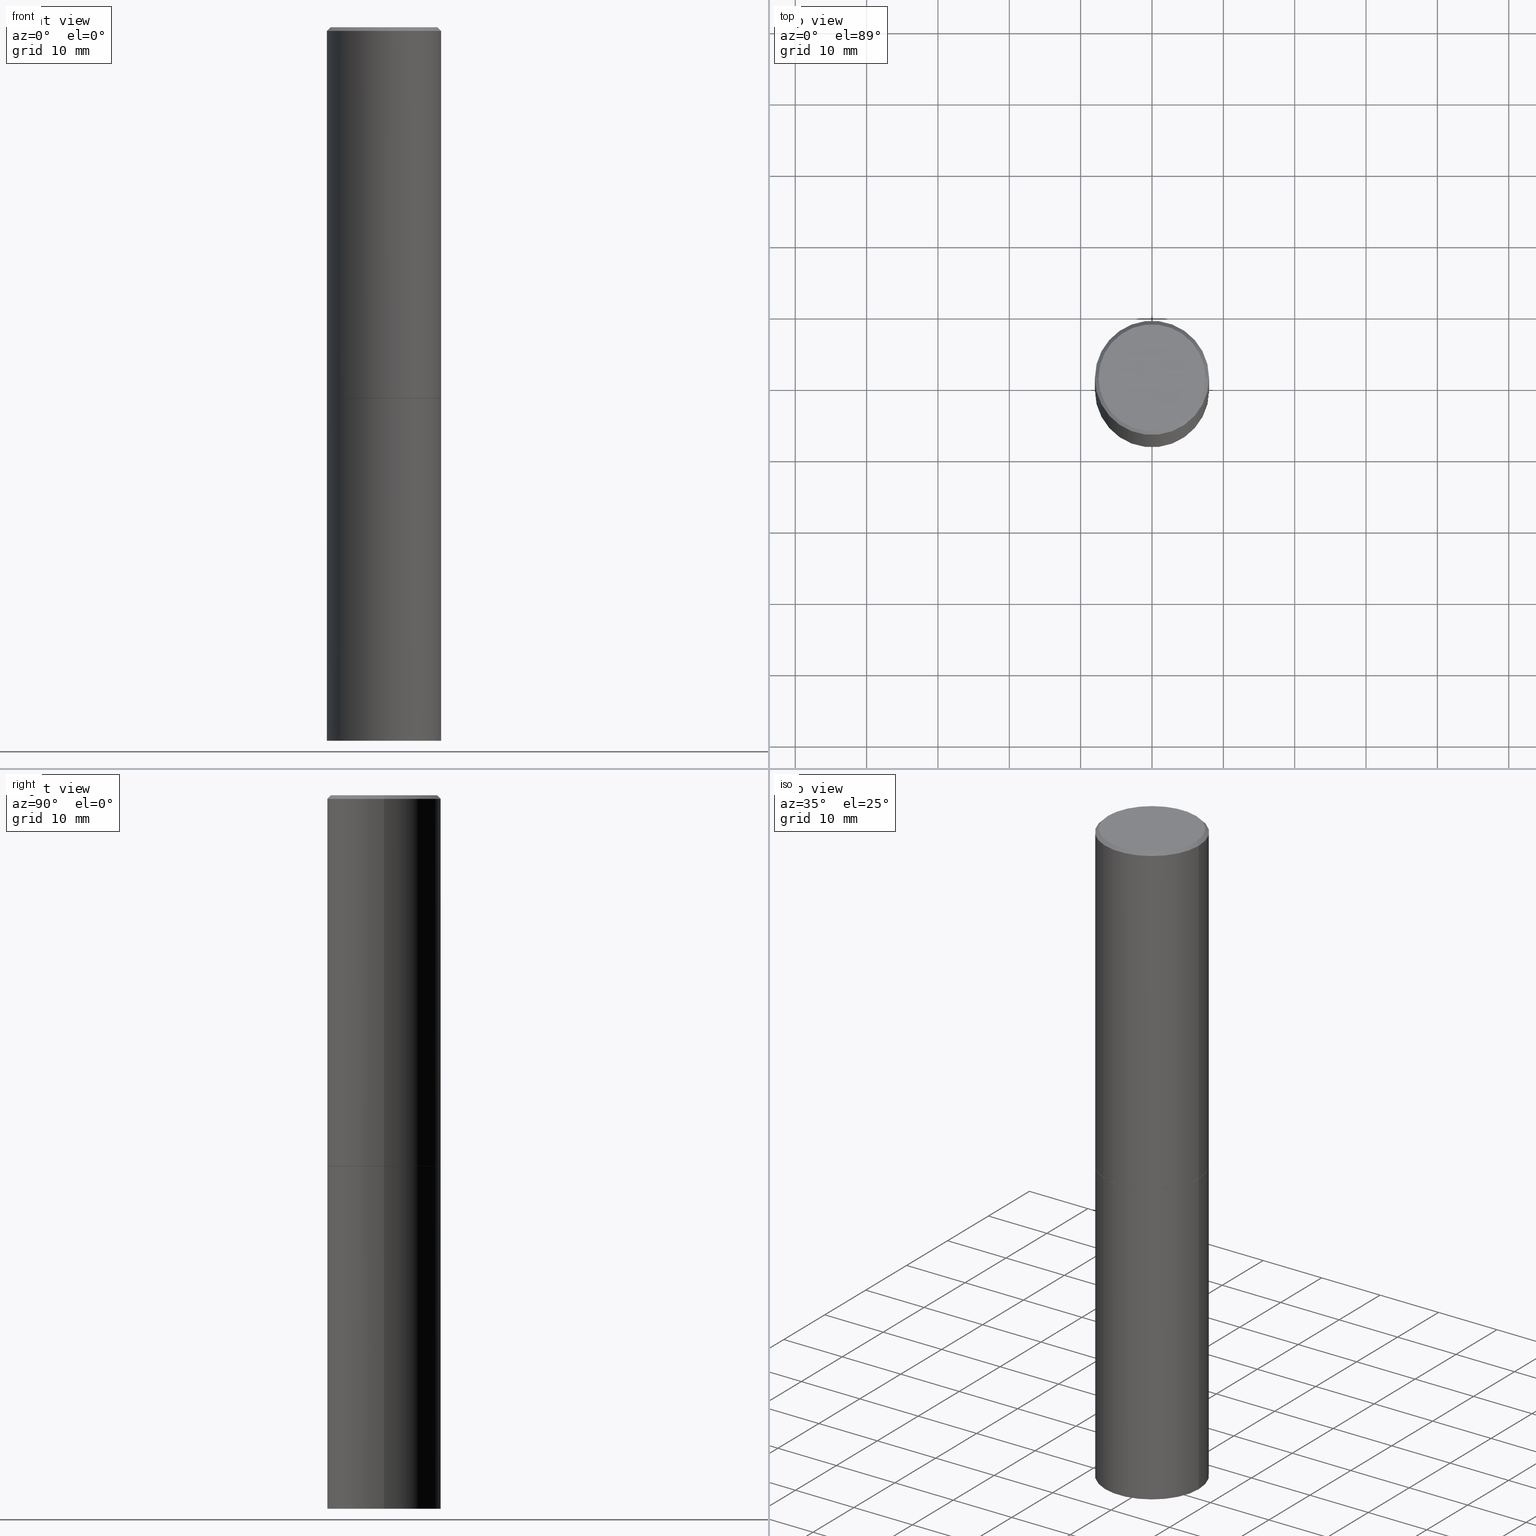
[diagram: canonical four-view strip — front | top / right | iso, engineering-drawing reading convention]
A machine part, canonical four-view strip (front | top / right | iso — engineering-drawing reading convention). The complete STEP part file that produces these views, byte-faithful:
ISO-10303-21;
HEADER;
FILE_DESCRIPTION (( 'STEP AP203' ),
    '1' );
FILE_NAME ('74752.STEP',
    '2024-05-03T15:03:38',
    ( '' ),
    ( '' ),
    'SwSTEP 2.0',
    'SolidWorks 2023',
    '' );
FILE_SCHEMA (( 'CONFIG_CONTROL_DESIGN' ));
ENDSEC;

DATA;
#1 = APPROVAL_STATUS ( 'not_yet_approved' ) ;
#2 = AXIS2_PLACEMENT_3D ( 'NONE', #175, #100, #146 ) ;
#3 = DIRECTION ( 'NONE',  ( -2.445468806185136597E-29, 3.491481338843145583E-15, 1.000000000000000000 ) ) ;
#4 = EDGE_CURVE ( 'NONE', #237, #280, #208, .T. ) ;
#5 = MANIFOLD_SOLID_BREP ( 'Body-Move/Copy2[1]', #209 ) ;
#6 = CARTESIAN_POINT ( 'NONE',  ( 5.006363740022211120E-29, -7.147760596879686624E-15, -2.047199999999999687 ) ) ;
#7 = DIRECTION ( 'NONE',  ( 1.000000000000000000, -6.982962677686265922E-15, 4.876176775795935232E-29 ) ) ;
#8 = AXIS2_PLACEMENT_3D ( 'NONE', #256, #202, #40 ) ;
#9 = AXIS2_PLACEMENT_3D ( 'NONE', #95, #3, #128 ) ;
#10 = CC_DESIGN_PERSON_AND_ORGANIZATION_ASSIGNMENT ( #207, #81, ( #289 ) ) ;
#11 = ADVANCED_BREP_SHAPE_REPRESENTATION ( '74752', ( #5, #12, #143 ), #251 ) ;
#12 = MANIFOLD_SOLID_BREP ( 'Body-Move/Copy2[2]', #345 ) ;
#13 = FACE_OUTER_BOUND ( 'NONE', #332, .T. ) ;
#14 = CONICAL_SURFACE ( 'NONE', #44, 0.3149499999999997857, 0.7853981633974471688 ) ;
#15 = SHAPE_DEFINITION_REPRESENTATION ( #150, #11 ) ;
#16 = APPROVAL_ROLE ( '' ) ;
#17 = EDGE_LOOP ( 'NONE', ( #87, #113 ) ) ;
#18 = PERSON_AND_ORGANIZATION ( #309, #346 ) ;
#19 = CARTESIAN_POINT ( 'NONE',  ( -0.3149499999999997857, 2.129454468560425389E-15, -0.02000000000000006981 ) ) ;
#20 =( NAMED_UNIT ( * ) PLANE_ANGLE_UNIT ( ) SI_UNIT ( $, .RADIAN. ) );
#21 = LINE ( 'NONE', #270, #245 ) ;
#22 = AXIS2_PLACEMENT_3D ( 'NONE', #6, #121, #230 ) ;
#23 = VECTOR ( 'NONE', #145, 39.37007874015748143 ) ;
#24 = APPROVAL_STATUS ( 'not_yet_approved' ) ;
#25 = DIRECTION ( 'NONE',  ( 1.000000000000000000, -6.982962677686266711E-15, 0.000000000000000000 ) ) ;
#26 = DIRECTION ( 'NONE',  ( 1.000000000000000000, -6.982962677686266711E-15, 0.000000000000000000 ) ) ;
#27 = DIRECTION ( 'NONE',  ( 1.000000000000000000, -6.982962677686266711E-15, 0.000000000000000000 ) ) ;
#28 = ADVANCED_FACE ( 'NONE', ( #13 ), #285, .F. ) ;
#29 = DIRECTION ( 'NONE',  ( 1.000000000000000000, -6.982962677686266711E-15, 0.000000000000000000 ) ) ;
#30 = ORIENTED_EDGE ( 'NONE', *, *, #221, .F. ) ;
#31 = CC_DESIGN_APPROVAL ( #110, ( #58 ) ) ;
#32 = CC_DESIGN_PERSON_AND_ORGANIZATION_ASSIGNMENT ( #53, #241, ( #61 ) ) ;
#33 = DIRECTION ( 'NONE',  ( -1.000000000000000000, 6.982962677686266711E-15, 0.000000000000000000 ) ) ;
#34 = ORIENTED_EDGE ( 'NONE', *, *, #47, .F. ) ;
#35 = VERTEX_POINT ( 'NONE', #261 ) ;
#36 = EDGE_CURVE ( 'NONE', #366, #119, #288, .T. ) ;
#37 = LINE ( 'NONE', #181, #23 ) ;
#38 = CARTESIAN_POINT ( 'NONE',  ( 0.000000000000000000, 0.000000000000000000, 0.000000000000000000 ) ) ;
#39 = ADVANCED_FACE ( 'NONE', ( #43 ), #90, .T. ) ;
#40 = DIRECTION ( 'NONE',  ( -1.000000000000000000, 6.982962677686265922E-15, -4.876176775795935793E-29 ) ) ;
#41 = CIRCLE ( 'NONE', #200, 0.3139500000000000068 ) ;
#42 = EDGE_CURVE ( 'NONE', #35, #136, #46, .T. ) ;
#43 = FACE_OUTER_BOUND ( 'NONE', #252, .T. ) ;
#44 = AXIS2_PLACEMENT_3D ( 'NONE', #169, #277, #33 ) ;
#45 = COORDINATED_UNIVERSAL_TIME_OFFSET ( 5, 0, .BEHIND. ) ;
#46 = LINE ( 'NONE', #68, #148 ) ;
#47 = EDGE_CURVE ( 'NONE', #280, #119, #315, .T. ) ;
#48 = CARTESIAN_POINT ( 'NONE',  ( 5.003918271216025517E-29, -7.144269115540843617E-15, -2.046199999999999797 ) ) ;
#49 = PERSON_AND_ORGANIZATION ( #309, #346 ) ;
#50 = DESIGN_CONTEXT ( 'detailed design', #94, 'design' ) ;
#51 = CARTESIAN_POINT ( 'NONE',  ( 0.000000000000000000, 0.000000000000000000, 0.000000000000000000 ) ) ;
#52 = CIRCLE ( 'NONE', #99, 0.3149500000000000077 ) ;
#53 = PERSON_AND_ORGANIZATION ( #309, #346 ) ;
#54 = CARTESIAN_POINT ( 'NONE',  ( 0.3149500000000000077, -9.343553210878133488E-15, -2.046199999999999797 ) ) ;
#55 = ORIENTED_EDGE ( 'NONE', *, *, #67, .T. ) ;
#56 = DIRECTION ( 'NONE',  ( 1.000000000000000000, -6.982962677686266711E-15, 0.000000000000000000 ) ) ;
#57 = ORIENTED_EDGE ( 'NONE', *, *, #4, .T. ) ;
#58 = PRODUCT_DEFINITION ( 'UNKNOWN', '', #61, #50 ) ;
#59 = DIRECTION ( 'NONE',  ( 1.000000000000000000, -6.982962677686266711E-15, 4.876176775795936353E-29 ) ) ;
#60 = VERTEX_POINT ( 'NONE', #199 ) ;
#61 = PRODUCT_DEFINITION_FORMATION_WITH_SPECIFIED_SOURCE ( 'ANY', '', #286, .NOT_KNOWN. ) ;
#62 = ORIENTED_EDGE ( 'NONE', *, *, #36, .T. ) ;
#63 = FACE_OUTER_BOUND ( 'NONE', #17, .T. ) ;
#64 = VECTOR ( 'NONE', #254, 39.37007874015748143 ) ;
#65 = CIRCLE ( 'NONE', #174, 0.3149499999999997857 ) ;
#66 = CARTESIAN_POINT ( 'NONE',  ( 5.006363740022211680E-29, -7.147760596879688202E-15, -2.047200000000000131 ) ) ;
#67 = EDGE_CURVE ( 'NONE', #60, #237, #219, .T. ) ;
#68 = CARTESIAN_POINT ( 'NONE',  ( -0.3149500000000000077, 2.237854346276435590E-15, -1.549218606675782676E-29 ) ) ;
#69 = AXIS2_PLACEMENT_3D ( 'NONE', #188, #297, #213 ) ;
#70 = CC_DESIGN_APPROVAL ( #187, ( #61 ) ) ;
#71 = PRODUCT_RELATED_PRODUCT_CATEGORY ( 'detail', '', ( #286 ) ) ;
#72 = DIRECTION ( 'NONE',  ( -2.445468806185136877E-29, 3.491481338843145188E-15, 1.000000000000000000 ) ) ;
#73 = COORDINATED_UNIVERSAL_TIME_OFFSET ( 5, 0, .BEHIND. ) ;
#74 = DIRECTION ( 'NONE',  ( 0.7071067811865232589, -2.468850131082003836E-15, 0.7071067811865715536 ) ) ;
#75 = ADVANCED_FACE ( 'NONE', ( #147 ), #125, .T. ) ;
#76 = COORDINATED_UNIVERSAL_TIME_OFFSET ( 5, 0, .BEHIND. ) ;
#77 = LINE ( 'NONE', #185, #232 ) ;
#78 = CALENDAR_DATE ( 2024, 3, 5 ) ;
#79 = CC_DESIGN_PERSON_AND_ORGANIZATION_ASSIGNMENT ( #327, #260, ( #61 ) ) ;
#80 = DIRECTION ( 'NONE',  ( -2.445468806185136597E-29, 3.491481338843145583E-15, 1.000000000000000000 ) ) ;
#81 = PERSON_AND_ORGANIZATION_ROLE ( 'classification_officer' ) ;
#82 = CARTESIAN_POINT ( 'NONE',  ( -0.3149500000000000077, -1.369195024882416092E-15, -2.046199999999999797 ) ) ;
#83 = EDGE_LOOP ( 'NONE', ( #227, #172, #102, #89 ) ) ;
#84 = CARTESIAN_POINT ( 'NONE',  ( 0.3139500000000000068, -9.340061729539290481E-15, -2.047199999999999687 ) ) ;
#85 = EDGE_LOOP ( 'NONE', ( #109, #247, #116, #305 ) ) ;
#86 = CARTESIAN_POINT ( 'NONE',  ( 4.890937612370289799E-31, -6.982962677686315028E-17, -0.02000000000000006981 ) ) ;
#87 = ORIENTED_EDGE ( 'NONE', *, *, #355, .F. ) ;
#88 = ORIENTED_EDGE ( 'NONE', *, *, #344, .T. ) ;
#89 = ORIENTED_EDGE ( 'NONE', *, *, #319, .F. ) ;
#90 = CYLINDRICAL_SURFACE ( 'NONE', #257, 0.3149499999999998967 ) ;
#91 = EDGE_CURVE ( 'NONE', #167, #250, #177, .T. ) ;
#92 = DIRECTION ( 'NONE',  ( -2.445468806185136597E-29, 3.491481338843145583E-15, 1.000000000000000000 ) ) ;
#93 = AXIS2_PLACEMENT_3D ( 'NONE', #324, #131, #114 ) ;
#94 = APPLICATION_CONTEXT ( 'configuration controlled 3d designs of mechanical parts and assemblies' ) ;
#95 = CARTESIAN_POINT ( 'NONE',  ( 0.000000000000000000, 0.000000000000000000, 0.000000000000000000 ) ) ;
#96 = CC_DESIGN_PERSON_AND_ORGANIZATION_ASSIGNMENT ( #49, #323, ( #58 ) ) ;
#97 = APPROVAL_ROLE ( '' ) ;
#98 = DATE_AND_TIME ( #151, #338 ) ;
#99 = AXIS2_PLACEMENT_3D ( 'NONE', #164, #129, #190 ) ;
#100 = DIRECTION ( 'NONE',  ( -2.445468806185136597E-29, 3.491481338843145583E-15, 1.000000000000000000 ) ) ;
#101 = PERSON_AND_ORGANIZATION ( #309, #346 ) ;
#102 = ORIENTED_EDGE ( 'NONE', *, *, #47, .T. ) ;
#103 = EDGE_CURVE ( 'NONE', #167, #366, #337, .T. ) ;
#104 = LENGTH_MEASURE_WITH_UNIT ( LENGTH_MEASURE( 0.02539999999999999897 ), #130 );
#105 = FACE_OUTER_BOUND ( 'NONE', #224, .T. ) ;
#106 = DIRECTION ( 'NONE',  ( 1.000000000000000000, -6.982962677686269866E-15, 0.000000000000000000 ) ) ;
#107 = APPROVAL_DATE_TIME ( #296, #110 ) ;
#108 = CYLINDRICAL_SURFACE ( 'NONE', #276, 0.3149500000000000077 ) ;
#109 = ORIENTED_EDGE ( 'NONE', *, *, #355, .T. ) ;
#110 = APPROVAL ( #320, 'UNSPECIFIED' ) ;
#111 = DIRECTION ( 'NONE',  ( -2.445468806185136597E-29, 3.491481338843145583E-15, 1.000000000000000000 ) ) ;
#112 = AXIS2_PLACEMENT_3D ( 'NONE', #354, #272, #56 ) ;
#113 = ORIENTED_EDGE ( 'NONE', *, *, #67, .F. ) ;
#114 = DIRECTION ( 'NONE',  ( 1.000000000000000000, -6.982962677686269866E-15, 0.000000000000000000 ) ) ;
#115 = ORIENTED_EDGE ( 'NONE', *, *, #178, .F. ) ;
#116 = ORIENTED_EDGE ( 'NONE', *, *, #344, .F. ) ;
#117 = ADVANCED_FACE ( 'NONE', ( #233 ), #307, .T. ) ;
#118 = AXIS2_PLACEMENT_3D ( 'NONE', #357, #134, #106 ) ;
#119 = VERTEX_POINT ( 'NONE', #156 ) ;
#120 = DIRECTION ( 'NONE',  ( -0.7071067811865466846, 2.468850131082247989E-15, -0.7071067811865483499 ) ) ;
#121 = DIRECTION ( 'NONE',  ( -2.445468806185136597E-29, 3.491481338843145583E-15, 1.000000000000000000 ) ) ;
#122 = ORIENTED_EDGE ( 'NONE', *, *, #42, .T. ) ;
#123 = AXIS2_PLACEMENT_3D ( 'NONE', #240, #295, #193 ) ;
#124 = CIRCLE ( 'NONE', #112, 0.3149499999999997857 ) ;
#125 = CYLINDRICAL_SURFACE ( 'NONE', #9, 0.3149500000000000077 ) ;
#126 = SECURITY_CLASSIFICATION_LEVEL ( 'unclassified' ) ;
#127 = ADVANCED_FACE ( 'NONE', ( #63 ), #205, .F. ) ;
#128 = DIRECTION ( 'NONE',  ( 1.000000000000000000, -6.982962677686266711E-15, 4.876176775795936353E-29 ) ) ;
#129 = DIRECTION ( 'NONE',  ( -2.445468806185136597E-29, 3.491481338843145583E-15, 1.000000000000000000 ) ) ;
#130 =( LENGTH_UNIT ( ) NAMED_UNIT ( * ) SI_UNIT ( $, .METRE. ) );
#131 = DIRECTION ( 'NONE',  ( -2.445468806185136597E-29, 3.491481338843145583E-15, 1.000000000000000000 ) ) ;
#132 = AXIS2_PLACEMENT_3D ( 'NONE', #312, #92, #159 ) ;
#133 = MECHANICAL_CONTEXT ( 'NONE', #278, 'mechanical' ) ;
#134 = DIRECTION ( 'NONE',  ( -2.445468806185136597E-29, 3.491481338843145583E-15, 1.000000000000000000 ) ) ;
#135 = FACE_OUTER_BOUND ( 'NONE', #83, .T. ) ;
#136 = VERTEX_POINT ( 'NONE', #283 ) ;
#137 = DIRECTION ( 'NONE',  ( -2.445468806185136597E-29, 3.491481338843145583E-15, 1.000000000000000000 ) ) ;
#138 = APPROVAL_PERSON_ORGANIZATION ( #101, #110, #210 ) ;
#139 = ORIENTED_EDGE ( 'NONE', *, *, #91, .T. ) ;
#140 = FACE_OUTER_BOUND ( 'NONE', #334, .T. ) ;
#141 = EDGE_CURVE ( 'NONE', #349, #250, #37, .T. ) ;
#142 = ORIENTED_EDGE ( 'NONE', *, *, #274, .F. ) ;
#143 = AXIS2_PLACEMENT_3D ( 'NONE', #265, #192, #155 ) ;
#144 = ORIENTED_EDGE ( 'NONE', *, *, #231, .T. ) ;
#145 = DIRECTION ( 'NONE',  ( -2.445468806185136877E-29, 3.491481338843145188E-15, 1.000000000000000000 ) ) ;
#146 = DIRECTION ( 'NONE',  ( 1.000000000000000000, -6.982962677686266711E-15, 0.000000000000000000 ) ) ;
#147 = FACE_OUTER_BOUND ( 'NONE', #249, .T. ) ;
#148 = VECTOR ( 'NONE', #72, 39.37007874015748143 ) ;
#149 = AXIS2_PLACEMENT_3D ( 'NONE', #243, #264, #163 ) ;
#150 = PRODUCT_DEFINITION_SHAPE ( 'NONE', 'NONE',  #58 ) ;
#151 = CALENDAR_DATE ( 2024, 3, 5 ) ;
#152 = ADVANCED_FACE ( 'NONE', ( #253 ), #267, .T. ) ;
#153 = ADVANCED_FACE ( 'NONE', ( #135 ), #194, .T. ) ;
#154 = CIRCLE ( 'NONE', #170, 0.3149500000000000077 ) ;
#155 = DIRECTION ( 'NONE',  ( 1.000000000000000000, 0.000000000000000000, 0.000000000000000000 ) ) ;
#156 = CARTESIAN_POINT ( 'NONE',  ( 0.3149499999999997857, -2.230543471175005872E-15, -0.02000000000000006981 ) ) ;
#157 = DATE_AND_TIME ( #291, #204 ) ;
#158 = CC_DESIGN_PERSON_AND_ORGANIZATION_ASSIGNMENT ( #325, #186, ( #286 ) ) ;
#159 = DIRECTION ( 'NONE',  ( 1.000000000000000000, -6.982962677686266711E-15, 0.000000000000000000 ) ) ;
#160 = APPROVAL_DATE_TIME ( #299, #187 ) ;
#161 = DIRECTION ( 'NONE',  ( 2.438088387897960049E-29, -3.491481338843145188E-15, -1.000000000000000000 ) ) ;
#162 = CALENDAR_DATE ( 2024, 3, 5 ) ;
#163 = DIRECTION ( 'NONE',  ( 1.000000000000000000, -6.982962677686265922E-15, 4.876176775795935232E-29 ) ) ;
#164 = CARTESIAN_POINT ( 'NONE',  ( 9.627810689950883669E-29, -1.374596203102546341E-14, -3.937000000000000277 ) ) ;
#165 = ORIENTED_EDGE ( 'NONE', *, *, #336, .T. ) ;
#166 = DIRECTION ( 'NONE',  ( -1.000000000000000000, 6.982962677686265922E-15, -4.876176775795935793E-29 ) ) ;
#167 = VERTEX_POINT ( 'NONE', #238 ) ;
#168 = ADVANCED_FACE ( 'NONE', ( #359 ), #108, .T. ) ;
#169 = CARTESIAN_POINT ( 'NONE',  ( 4.890937612370289799E-31, -6.982962677686315028E-17, -0.02000000000000006981 ) ) ;
#170 = AXIS2_PLACEMENT_3D ( 'NONE', #326, #328, #27 ) ;
#171 = ORIENTED_EDGE ( 'NONE', *, *, #221, .T. ) ;
#172 = ORIENTED_EDGE ( 'NONE', *, *, #306, .T. ) ;
#173 = ORIENTED_EDGE ( 'NONE', *, *, #335, .F. ) ;
#174 = AXIS2_PLACEMENT_3D ( 'NONE', #275, #80, #29 ) ;
#175 = CARTESIAN_POINT ( 'NONE',  ( 5.006363740022211120E-29, -7.147760596879686624E-15, -2.047199999999999687 ) ) ;
#176 = CARTESIAN_POINT ( 'NONE',  ( -0.3149499999999997857, 2.129454468560425389E-15, -0.02000000000000006981 ) ) ;
#177 = LINE ( 'NONE', #176, #189 ) ;
#178 = EDGE_CURVE ( 'NONE', #303, #222, #77, .T. ) ;
#179 = AXIS2_PLACEMENT_3D ( 'NONE', #223, #137, #333 ) ;
#180 = AXIS2_PLACEMENT_3D ( 'NONE', #235, #229, #347 ) ;
#181 = CARTESIAN_POINT ( 'NONE',  ( -0.3149499999999998967, 2.237854346276434801E-15, -1.549218606675782116E-29 ) ) ;
#182 = LOCAL_TIME ( 11, 3, 38.00000000000000000, #45 ) ;
#183 = ORIENTED_EDGE ( 'NONE', *, *, #306, .F. ) ;
#184 = COORDINATED_UNIVERSAL_TIME_OFFSET ( 5, 0, .BEHIND. ) ;
#185 = CARTESIAN_POINT ( 'NONE',  ( 0.3149500000000000077, -2.199284095337289871E-15, 1.535751875536930130E-29 ) ) ;
#186 = PERSON_AND_ORGANIZATION_ROLE ( 'design_owner' ) ;
#187 = APPROVAL ( #24, 'UNSPECIFIED' ) ;
#188 = CARTESIAN_POINT ( 'NONE',  ( 5.006363740022211120E-29, -7.147760596879686624E-15, -2.047199999999999687 ) ) ;
#189 = VECTOR ( 'NONE', #120, 39.37007874015748143 ) ;
#190 = DIRECTION ( 'NONE',  ( 1.000000000000000000, -6.982962677686269866E-15, 0.000000000000000000 ) ) ;
#191 = ORIENTED_EDGE ( 'NONE', *, *, #91, .F. ) ;
#192 = DIRECTION ( 'NONE',  ( 0.000000000000000000, 0.000000000000000000, 1.000000000000000000 ) ) ;
#193 = DIRECTION ( 'NONE',  ( -1.000000000000000000, 6.982962677686265922E-15, -4.876176775795935793E-29 ) ) ;
#194 = CYLINDRICAL_SURFACE ( 'NONE', #149, 0.3149499999999998967 ) ;
#195 = ORIENTED_EDGE ( 'NONE', *, *, #42, .F. ) ;
#196 = AXIS2_PLACEMENT_3D ( 'NONE', #86, #246, #362 ) ;
#197 = EDGE_LOOP ( 'NONE', ( #195, #244, #217, #173 ) ) ;
#198 = ORIENTED_EDGE ( 'NONE', *, *, #336, .F. ) ;
#199 = CARTESIAN_POINT ( 'NONE',  ( -0.3139500000000000068, -4.911713223612629246E-15, -2.047199999999999687 ) ) ;
#200 = AXIS2_PLACEMENT_3D ( 'NONE', #248, #364, #26 ) ;
#201 = CARTESIAN_POINT ( 'NONE',  ( 0.3149499999999998967, -2.199284095337288688E-15, 1.535751875536929289E-29 ) ) ;
#202 = DIRECTION ( 'NONE',  ( 2.438088387897960049E-29, -3.491481338843145188E-15, -1.000000000000000000 ) ) ;
#203 = AXIS2_PLACEMENT_3D ( 'NONE', #351, #161, #166 ) ;
#204 = LOCAL_TIME ( 11, 3, 38.00000000000000000, #73 ) ;
#205 = PLANE ( 'NONE',  #361 ) ;
#206 = ADVANCED_FACE ( 'NONE', ( #242 ), #304, .T. ) ;
#207 = PERSON_AND_ORGANIZATION ( #309, #346 ) ;
#208 = LINE ( 'NONE', #340, #218 ) ;
#209 = CLOSED_SHELL ( 'NONE', ( #75, #206, #28, #168 ) ) ;
#210 = APPROVAL_ROLE ( '' ) ;
#211 = PLANE ( 'NONE',  #123 ) ;
#212 = COORDINATED_UNIVERSAL_TIME_OFFSET ( 5, 0, .BEHIND. ) ;
#213 = DIRECTION ( 'NONE',  ( 1.000000000000000000, -6.982962677686269866E-15, 0.000000000000000000 ) ) ;
#214 = DIMENSIONAL_EXPONENTS ( 1.000000000000000000, 0.000000000000000000, 0.000000000000000000, 0.000000000000000000, 0.000000000000000000, 0.000000000000000000, 0.000000000000000000 ) ;
#215 = PERSON_AND_ORGANIZATION ( #309, #346 ) ;
#216 = CARTESIAN_POINT ( 'NONE',  ( 0.3149500000000000077, -1.594524612636275486E-14, -3.937000000000000277 ) ) ;
#217 = ORIENTED_EDGE ( 'NONE', *, *, #178, .T. ) ;
#218 = VECTOR ( 'NONE', #74, 39.37007874015748854 ) ;
#219 = CIRCLE ( 'NONE', #132, 0.3139500000000000068 ) ;
#220 = DIRECTION ( 'NONE',  ( -2.445468806185136877E-29, 3.491481338843145188E-15, 1.000000000000000000 ) ) ;
#221 = EDGE_CURVE ( 'NONE', #119, #250, #65, .T. ) ;
#222 = VERTEX_POINT ( 'NONE', #331 ) ;
#223 = CARTESIAN_POINT ( 'NONE',  ( -2.087702828670439639E-46, 2.980686340760894400E-32, 8.537024980200822558E-18 ) ) ;
#224 = EDGE_LOOP ( 'NONE', ( #360, #144 ) ) ;
#225 = EDGE_LOOP ( 'NONE', ( #339, #62, #171, #191 ) ) ;
#226 = CIRCLE ( 'NONE', #258, 0.3149500000000000077 ) ;
#227 = ORIENTED_EDGE ( 'NONE', *, *, #141, .F. ) ;
#228 = EDGE_CURVE ( 'NONE', #60, #349, #21, .T. ) ;
#229 = DIRECTION ( 'NONE',  ( -2.445468806185136597E-29, 3.491481338843145583E-15, 1.000000000000000000 ) ) ;
#230 = DIRECTION ( 'NONE',  ( 1.000000000000000000, -6.982962677686266711E-15, 0.000000000000000000 ) ) ;
#231 = EDGE_CURVE ( 'NONE', #366, #167, #313, .T. ) ;
#232 = VECTOR ( 'NONE', #220, 39.37007874015748143 ) ;
#233 = FACE_OUTER_BOUND ( 'NONE', #363, .T. ) ;
#234 = ADVANCED_FACE ( 'NONE', ( #266 ), #352, .T. ) ;
#235 = CARTESIAN_POINT ( 'NONE',  ( -2.087702828670439639E-46, 2.980686340760894400E-32, 8.537024980200822558E-18 ) ) ;
#236 = DATE_AND_TIME ( #162, #298 ) ;
#237 = VERTEX_POINT ( 'NONE', #84 ) ;
#238 = CARTESIAN_POINT ( 'NONE',  ( -0.2949499999999997679, 2.094539655171994135E-15, 8.537024980186296424E-18 ) ) ;
#239 = LOCAL_TIME ( 11, 3, 38.00000000000000000, #76 ) ;
#240 = CARTESIAN_POINT ( 'NONE',  ( 2.059624841783562486E-15, 0.2949499999999997679, -1.025543908401684563E-15 ) ) ;
#241 = PERSON_AND_ORGANIZATION_ROLE ( 'creator' ) ;
#242 = FACE_OUTER_BOUND ( 'NONE', #311, .T. ) ;
#243 = CARTESIAN_POINT ( 'NONE',  ( 0.000000000000000000, 0.000000000000000000, 0.000000000000000000 ) ) ;
#244 = ORIENTED_EDGE ( 'NONE', *, *, #263, .T. ) ;
#245 = VECTOR ( 'NONE', #300, 39.37007874015748854 ) ;
#246 = DIRECTION ( 'NONE',  ( 2.445468806185136597E-29, -3.491481338843145583E-15, -1.000000000000000000 ) ) ;
#247 = ORIENTED_EDGE ( 'NONE', *, *, #228, .T. ) ;
#248 = CARTESIAN_POINT ( 'NONE',  ( 5.006363740022211120E-29, -7.147760596879686624E-15, -2.047199999999999687 ) ) ;
#249 = EDGE_LOOP ( 'NONE', ( #341, #122, #198, #115 ) ) ;
#250 = VERTEX_POINT ( 'NONE', #19 ) ;
#251 =( GEOMETRIC_REPRESENTATION_CONTEXT ( 3 ) GLOBAL_UNCERTAINTY_ASSIGNED_CONTEXT ( ( #294 ) ) GLOBAL_UNIT_ASSIGNED_CONTEXT ( ( #353, #20, #271 ) ) REPRESENTATION_CONTEXT ( 'NONE', 'WORKASPACE' ) );
#252 = EDGE_LOOP ( 'NONE', ( #88, #329, #30, #34 ) ) ;
#253 = FACE_OUTER_BOUND ( 'NONE', #85, .T. ) ;
#254 = DIRECTION ( 'NONE',  ( 0.7071067811865466846, -7.319954787623252890E-15, -0.7071067811865483499 ) ) ;
#255 = APPROVAL_PERSON_ORGANIZATION ( #215, #187, #16 ) ;
#256 = CARTESIAN_POINT ( 'NONE',  ( 2.199284095337339175E-15, 0.3149499999999928468, -2.047200000000001019 ) ) ;
#257 = AXIS2_PLACEMENT_3D ( 'NONE', #38, #343, #7 ) ;
#258 = AXIS2_PLACEMENT_3D ( 'NONE', #48, #302, #25 ) ;
#259 = APPROVAL_DATE_TIME ( #98, #284 ) ;
#260 = PERSON_AND_ORGANIZATION_ROLE ( 'design_supplier' ) ;
#261 = CARTESIAN_POINT ( 'NONE',  ( -0.3149500000000000077, -8.209006967676138246E-15, -3.937000000000000277 ) ) ;
#262 = DATE_TIME_ROLE ( 'classification_date' ) ;
#263 = EDGE_CURVE ( 'NONE', #35, #303, #322, .T. ) ;
#264 = DIRECTION ( 'NONE',  ( -2.445468806185136597E-29, 3.491481338843145583E-15, 1.000000000000000000 ) ) ;
#265 = CARTESIAN_POINT ( 'NONE',  ( 0.000000000000000000, 0.000000000000000000, 0.000000000000000000 ) ) ;
#266 = FACE_OUTER_BOUND ( 'NONE', #225, .T. ) ;
#267 = CONICAL_SURFACE ( 'NONE', #22, 0.3139500000000000068, 0.7853981633974141952 ) ;
#268 = CC_DESIGN_APPROVAL ( #284, ( #289 ) ) ;
#269 = DATE_TIME_ROLE ( 'creation_date' ) ;
#270 = CARTESIAN_POINT ( 'NONE',  ( -0.3139500000000000068, -4.917011677960851648E-15, -2.047199999999999687 ) ) ;
#271 =( NAMED_UNIT ( * ) SI_UNIT ( $, .STERADIAN. ) SOLID_ANGLE_UNIT ( ) );
#272 = DIRECTION ( 'NONE',  ( -2.445468806185136597E-29, 3.491481338843145583E-15, 1.000000000000000000 ) ) ;
#273 = ORIENTED_EDGE ( 'NONE', *, *, #228, .F. ) ;
#274 = EDGE_CURVE ( 'NONE', #303, #35, #52, .T. ) ;
#275 = CARTESIAN_POINT ( 'NONE',  ( 4.890937612370289799E-31, -6.982962677686315028E-17, -0.02000000000000006981 ) ) ;
#276 = AXIS2_PLACEMENT_3D ( 'NONE', #51, #111, #59 ) ;
#277 = DIRECTION ( 'NONE',  ( 2.445468806185136597E-29, -3.491481338843145583E-15, -1.000000000000000000 ) ) ;
#278 = APPLICATION_CONTEXT ( 'configuration controlled 3d designs of mechanical parts and assemblies' ) ;
#279 = ORIENTED_EDGE ( 'NONE', *, *, #263, .F. ) ;
#280 = VERTEX_POINT ( 'NONE', #54 ) ;
#281 = CC_DESIGN_SECURITY_CLASSIFICATION ( #289, ( #61 ) ) ;
#282 = DIRECTION ( 'NONE',  ( 1.000000000000000000, -6.982962677686265922E-15, 4.876176775795935793E-29 ) ) ;
#283 = CARTESIAN_POINT ( 'NONE',  ( -0.3149500000000000077, -8.209006967676138246E-15, -2.047199999999999687 ) ) ;
#284 = APPROVAL ( #1, 'UNSPECIFIED' ) ;
#285 = PLANE ( 'NONE',  #8 ) ;
#286 = PRODUCT ( '74752', '74752', '', ( #133 ) ) ;
#287 = VECTOR ( 'NONE', #317, 39.37007874015748143 ) ;
#288 = LINE ( 'NONE', #292, #64 ) ;
#289 = SECURITY_CLASSIFICATION ( '', '', #126 ) ;
#290 = ADVANCED_FACE ( 'NONE', ( #105 ), #211, .F. ) ;
#291 = CALENDAR_DATE ( 2024, 3, 5 ) ;
#292 = CARTESIAN_POINT ( 'NONE',  ( 0.3149499999999997857, -2.230543471175005872E-15, -0.02000000000000006981 ) ) ;
#293 = APPLICATION_PROTOCOL_DEFINITION ( 'international standard', 'config_control_design', 1994, #94 ) ;
#294 = UNCERTAINTY_MEASURE_WITH_UNIT (LENGTH_MEASURE( 1.000000000000000082E-05 ), #353, 'distance_accuracy_value', 'NONE');
#295 = DIRECTION ( 'NONE',  ( 2.438088387897960049E-29, -3.491481338843145188E-15, -1.000000000000000000 ) ) ;
#296 = DATE_AND_TIME ( #78, #182 ) ;
#297 = DIRECTION ( 'NONE',  ( -2.445468806185136597E-29, 3.491481338843145583E-15, 1.000000000000000000 ) ) ;
#298 = LOCAL_TIME ( 11, 3, 38.00000000000000000, #212 ) ;
#299 = DATE_AND_TIME ( #348, #239 ) ;
#300 = DIRECTION ( 'NONE',  ( -0.7071067811865232589, 7.493145998870265808E-15, 0.7071067811865715536 ) ) ;
#301 = ORIENTED_EDGE ( 'NONE', *, *, #103, .F. ) ;
#302 = DIRECTION ( 'NONE',  ( -2.445468806185136597E-29, 3.491481338843145583E-15, 1.000000000000000000 ) ) ;
#303 = VERTEX_POINT ( 'NONE', #216 ) ;
#304 = PLANE ( 'NONE',  #203 ) ;
#305 = ORIENTED_EDGE ( 'NONE', *, *, #4, .F. ) ;
#306 = EDGE_CURVE ( 'NONE', #349, #280, #226, .T. ) ;
#307 = CONICAL_SURFACE ( 'NONE', #2, 0.3139500000000000068, 0.7853981633974141952 ) ;
#308 = ORIENTED_EDGE ( 'NONE', *, *, #36, .F. ) ;
#309 = PERSON ( 'UNSPECIFIED', 'UNSPECIFIED', 'UNSPECIFIED', ('UNSPECIFIED'), ('UNSPECIFIED'), ('UNSPECIFIED') ) ;
#310 = CC_DESIGN_DATE_AND_TIME_ASSIGNMENT ( #157, #262, ( #289 ) ) ;
#311 = EDGE_LOOP ( 'NONE', ( #142, #279 ) ) ;
#312 = CARTESIAN_POINT ( 'NONE',  ( 5.006363740022211120E-29, -7.147760596879686624E-15, -2.047199999999999687 ) ) ;
#313 = CIRCLE ( 'NONE', #179, 0.2949499999999997679 ) ;
#314 = APPROVAL_PERSON_ORGANIZATION ( #18, #284, #97 ) ;
#315 = LINE ( 'NONE', #201, #287 ) ;
#316 = CC_DESIGN_DATE_AND_TIME_ASSIGNMENT ( #236, #269, ( #58 ) ) ;
#317 = DIRECTION ( 'NONE',  ( -2.445468806185136877E-29, 3.491481338843145188E-15, 1.000000000000000000 ) ) ;
#318 = DIRECTION ( 'NONE',  ( -2.438088387897960049E-29, 3.491481338843145188E-15, 1.000000000000000000 ) ) ;
#319 = EDGE_CURVE ( 'NONE', #250, #119, #124, .T. ) ;
#320 = APPROVAL_STATUS ( 'not_yet_approved' ) ;
#321 = ORIENTED_EDGE ( 'NONE', *, *, #319, .T. ) ;
#322 = CIRCLE ( 'NONE', #93, 0.3149500000000000077 ) ;
#323 = PERSON_AND_ORGANIZATION_ROLE ( 'creator' ) ;
#324 = CARTESIAN_POINT ( 'NONE',  ( 9.627810689950883669E-29, -1.374596203102546341E-14, -3.937000000000000277 ) ) ;
#325 = PERSON_AND_ORGANIZATION ( #309, #346 ) ;
#326 = CARTESIAN_POINT ( 'NONE',  ( 5.003918271216025517E-29, -7.144269115540843617E-15, -2.046199999999999797 ) ) ;
#327 = PERSON_AND_ORGANIZATION ( #309, #346 ) ;
#328 = DIRECTION ( 'NONE',  ( -2.445468806185136597E-29, 3.491481338843145583E-15, 1.000000000000000000 ) ) ;
#329 = ORIENTED_EDGE ( 'NONE', *, *, #141, .T. ) ;
#330 = CIRCLE ( 'NONE', #69, 0.3149500000000000077 ) ;
#331 = CARTESIAN_POINT ( 'NONE',  ( 0.3149500000000000077, -9.347044692216978073E-15, -2.047199999999999687 ) ) ;
#332 = EDGE_LOOP ( 'NONE', ( #165, #365 ) ) ;
#333 = DIRECTION ( 'NONE',  ( 1.000000000000000000, -6.982962677686267499E-15, 4.876053491004738270E-29 ) ) ;
#334 = EDGE_LOOP ( 'NONE', ( #308, #301, #139, #321 ) ) ;
#335 = EDGE_CURVE ( 'NONE', #136, #222, #330, .T. ) ;
#336 = EDGE_CURVE ( 'NONE', #222, #136, #342, .T. ) ;
#337 = CIRCLE ( 'NONE', #180, 0.2949499999999997679 ) ;
#338 = LOCAL_TIME ( 11, 3, 38.00000000000000000, #184 ) ;
#339 = ORIENTED_EDGE ( 'NONE', *, *, #231, .F. ) ;
#340 = CARTESIAN_POINT ( 'NONE',  ( 0.3139500000000000068, -9.340061729539290481E-15, -2.047199999999999687 ) ) ;
#341 = ORIENTED_EDGE ( 'NONE', *, *, #274, .T. ) ;
#342 = CIRCLE ( 'NONE', #118, 0.3149500000000000077 ) ;
#343 = DIRECTION ( 'NONE',  ( -2.445468806185136597E-29, 3.491481338843145583E-15, 1.000000000000000000 ) ) ;
#344 = EDGE_CURVE ( 'NONE', #280, #349, #154, .T. ) ;
#345 = CLOSED_SHELL ( 'NONE', ( #152, #39, #234, #350, #153, #117, #127, #290 ) ) ;
#346 = ORGANIZATION ( 'UNSPECIFIED', 'UNSPECIFIED', '' ) ;
#347 = DIRECTION ( 'NONE',  ( 1.000000000000000000, -6.982962677686267499E-15, 4.876053491004738270E-29 ) ) ;
#348 = CALENDAR_DATE ( 2024, 3, 5 ) ;
#349 = VERTEX_POINT ( 'NONE', #82 ) ;
#350 = ADVANCED_FACE ( 'NONE', ( #140 ), #14, .T. ) ;
#351 = CARTESIAN_POINT ( 'NONE',  ( 2.199284095337385323E-15, 0.3149499999999862965, -3.937000000000001165 ) ) ;
#352 = CONICAL_SURFACE ( 'NONE', #196, 0.3149499999999997857, 0.7853981633974471688 ) ;
#353 =( CONVERSION_BASED_UNIT ( 'INCH', #104 ) LENGTH_UNIT ( ) NAMED_UNIT ( #214 ) );
#354 = CARTESIAN_POINT ( 'NONE',  ( 4.890937612370289799E-31, -6.982962677686315028E-17, -0.02000000000000006981 ) ) ;
#355 = EDGE_CURVE ( 'NONE', #237, #60, #41, .T. ) ;
#356 = CARTESIAN_POINT ( 'NONE',  ( 0.2949499999999997679, -2.127023677808858891E-15, 8.537024980215462707E-18 ) ) ;
#357 = CARTESIAN_POINT ( 'NONE',  ( 5.006363740022211120E-29, -7.147760596879686624E-15, -2.047199999999999687 ) ) ;
#358 = APPLICATION_PROTOCOL_DEFINITION ( 'international standard', 'config_control_design', 1994, #278 ) ;
#359 = FACE_OUTER_BOUND ( 'NONE', #197, .T. ) ;
#360 = ORIENTED_EDGE ( 'NONE', *, *, #103, .T. ) ;
#361 = AXIS2_PLACEMENT_3D ( 'NONE', #66, #318, #282 ) ;
#362 = DIRECTION ( 'NONE',  ( -1.000000000000000000, 6.982962677686266711E-15, 0.000000000000000000 ) ) ;
#363 = EDGE_LOOP ( 'NONE', ( #273, #55, #57, #183 ) ) ;
#364 = DIRECTION ( 'NONE',  ( -2.445468806185136597E-29, 3.491481338843145583E-15, 1.000000000000000000 ) ) ;
#365 = ORIENTED_EDGE ( 'NONE', *, *, #335, .T. ) ;
#366 = VERTEX_POINT ( 'NONE', #356 ) ;
ENDSEC;
END-ISO-10303-21;
